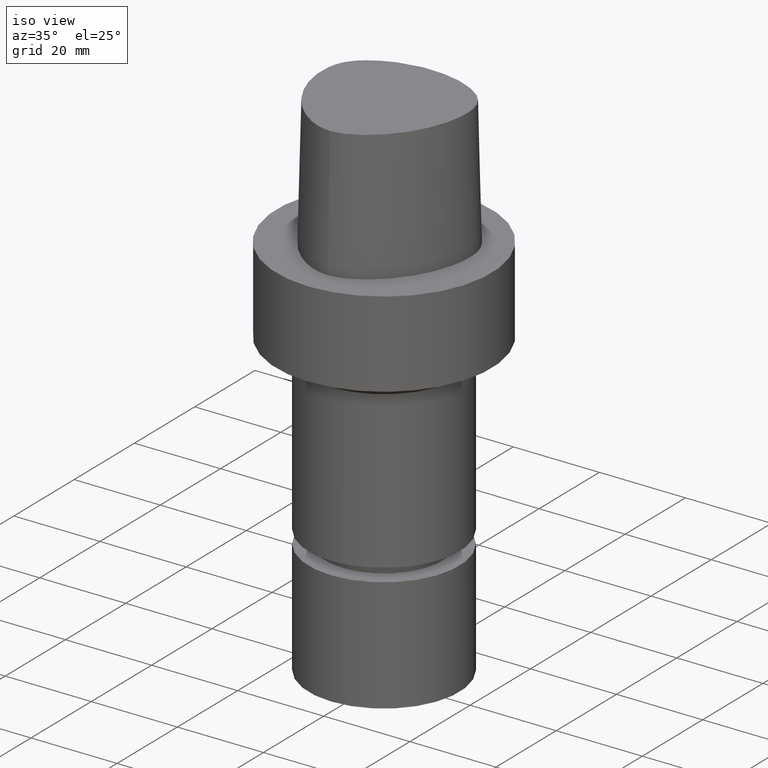
[diagram: clean part render]
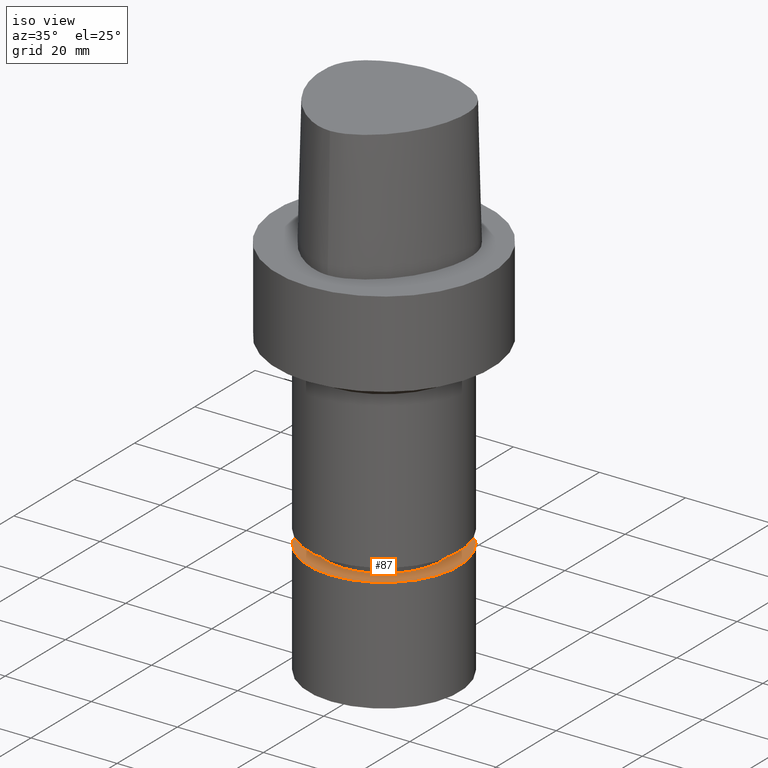
[diagram: same view with one face highlighted and labeled with its STEP entity id]
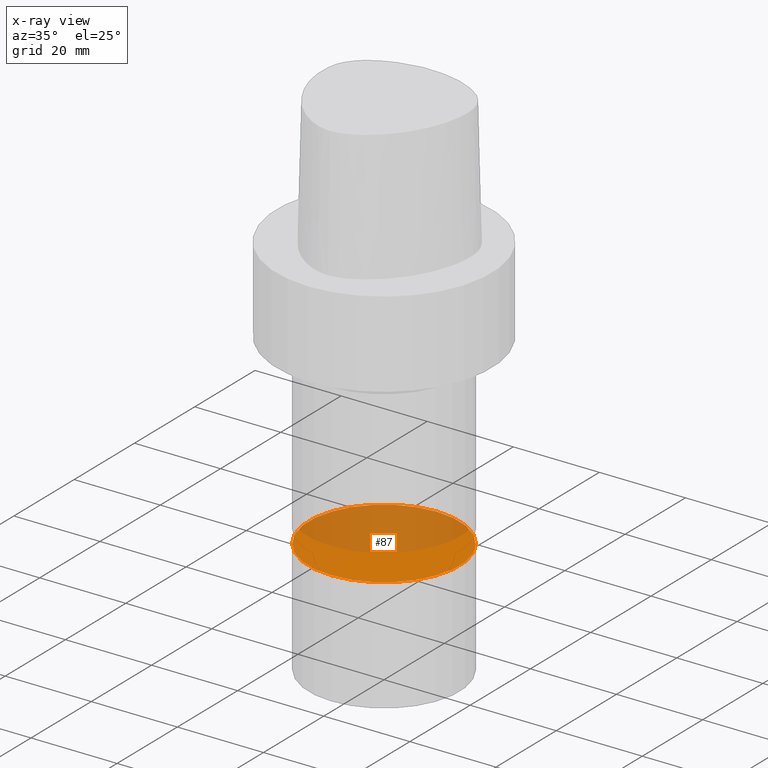
[diagram: x-ray of the same camera — body ghosted, the highlighted face saturated]
A machine part, iso view. The second image highlights one B-rep face of the part: STEP entity #87.
The next image is the same camera in x-ray: the body ghosted, the highlighted face saturated — about 53% of this face is hidden behind the body in this view.
In plain terms, the highlighted planar face has unit normal (-0, -0, 1).
Its self-contained STEP definition (entity closure, byte-faithful):
#87=ADVANCED_FACE('Unnamed[1]',(#201),#202,.T.);
#117=EDGE_CURVE('Unnamed[1]',#243,#243,#244,.T.);
#201=FACE_OUTER_BOUND('',#777,.T.);
#202=PLANE('',#778);
#243=VERTEX_POINT('',#928);
#244=CIRCLE('',#929,17.5);
#777=EDGE_LOOP('',(#1023));
#778=AXIS2_PLACEMENT_3D('',#1024,#1025,#1026);
#928=CARTESIAN_POINT('',(3.88825452162421E-015,17.5,-63.5000152587891));
#929=AXIS2_PLACEMENT_3D('',#1064,#1065,#1066);
#1023=ORIENTED_EDGE('',*,*,#117,.F.);
#1024=CARTESIAN_POINT('',(3.88825452162421E-015,8.75000000000001,-63.5000152587891));
#1025=DIRECTION('',(-6.12323399573677E-017,-1.22464679914735E-016,1.0));
#1026=DIRECTION('',(1.23259516440783E-032,-1.0,-1.22464679914735E-016));
#1064=CARTESIAN_POINT('',(3.88825452162421E-015,7.77650904324841E-015,-63.5000152587891));
#1065=DIRECTION('',(6.12323399573677E-017,1.22464679914735E-016,-1.0));
#1066=DIRECTION('',(-1.23259516440783E-032,1.0,1.22464679914735E-016));